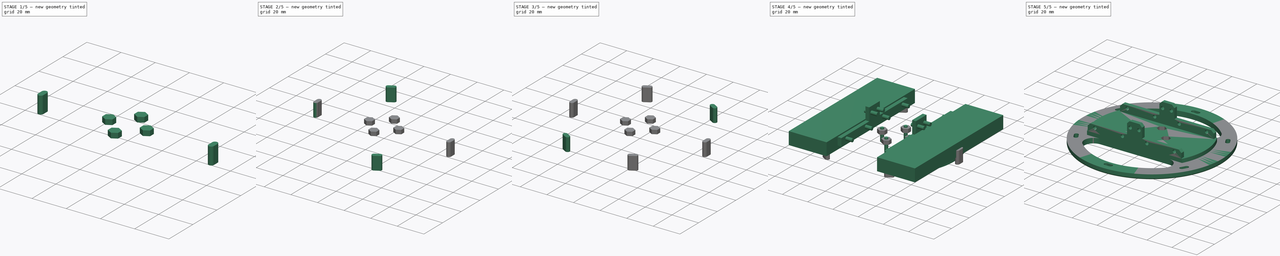
[diagram: build sequence overview — one tinted view per stage of 5, left to right]
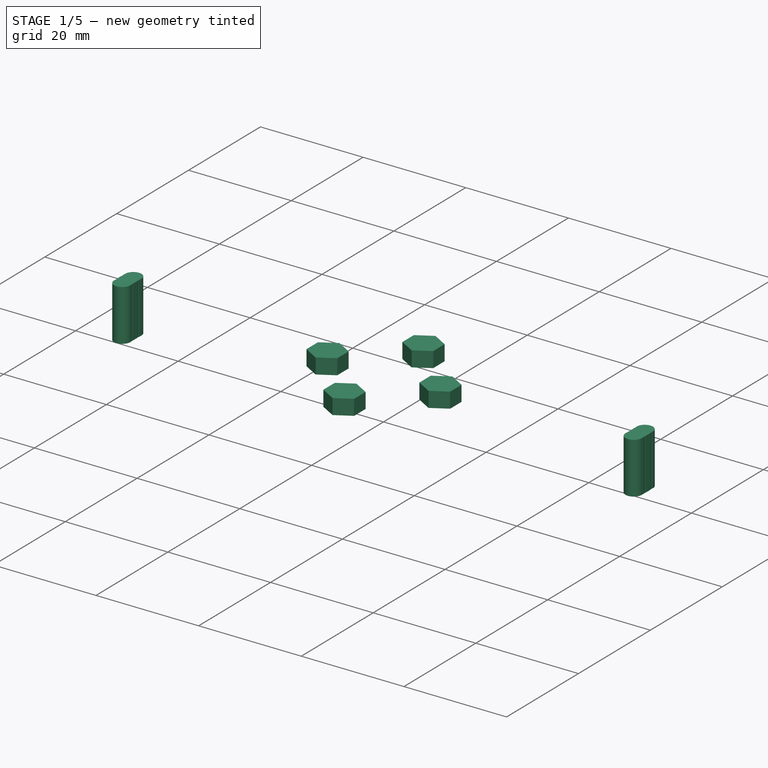
[diagram: stage 1 of 5 — iso view after this stage's code; geometry added in this stage tinted green]
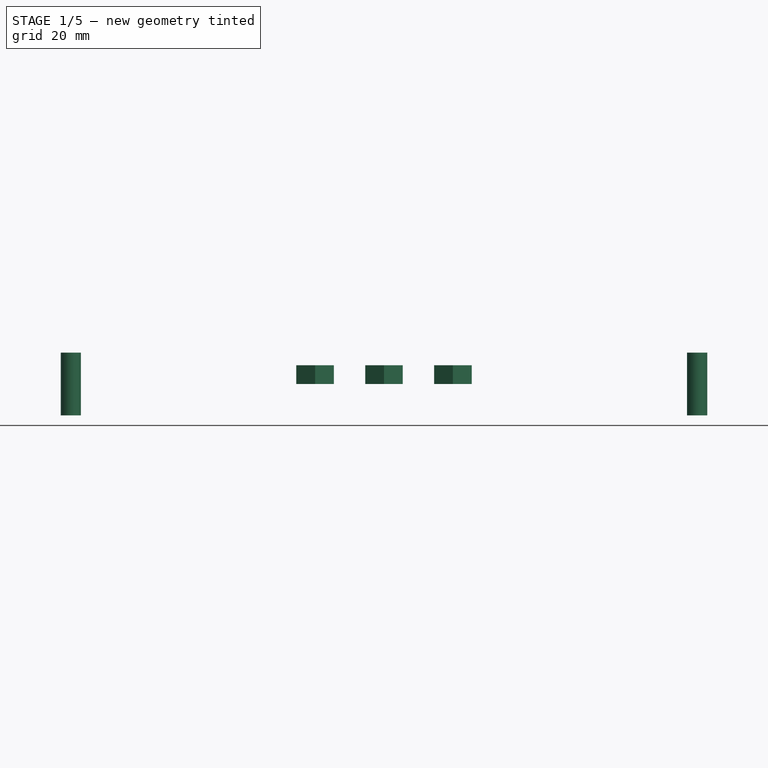
[diagram: stage 1 of 5 — front view after this stage's code; geometry added in this stage tinted green]
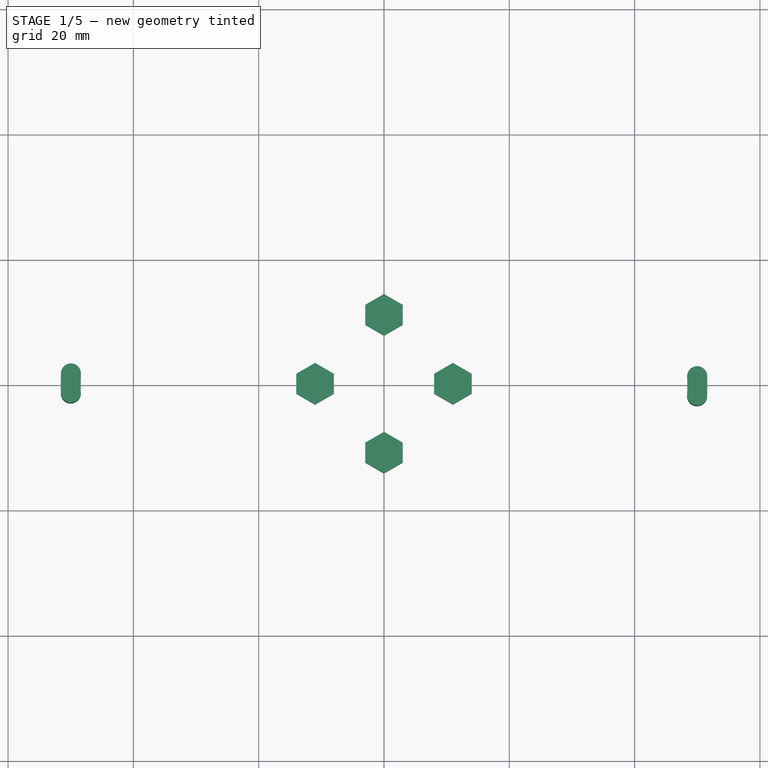
[diagram: stage 1 of 5 — top view after this stage's code; geometry added in this stage tinted green]
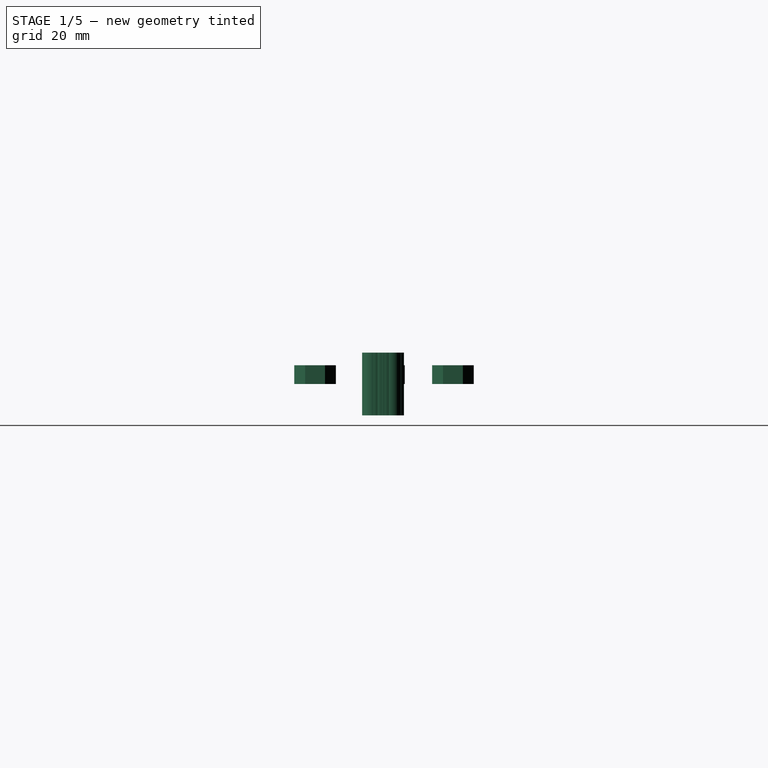
[diagram: stage 1 of 5 — right view after this stage's code; geometry added in this stage tinted green]
FCSTD DOCUMENT  (FreeCAD 0.15R4671 (Git))
Label: roll_plate
License: All rights reserved
LicenseURL: http://en.wikipedia.org/wiki/All_rights_reserved
objects: Part::Cylinder×71, Part::MultiFuse×52, Part::Box×9, Part::Cut×5, Part::Mirroring×5, Sketcher::SketchObject×4, Part::Extrusion×4, Part::Feature×2, Part::Fillet×1, Part::Chamfer×1
note: 154 computed .brp shape members not serialized (recipe doc carries the construction recipe); baked Part::Feature solids carry a one-line shape summary decoded from their .brp

FEATURE [Part::Cylinder] Cylinder065
  Angle = 360
  Height = 10
  Placement = pos=(50,0,-2) rot=(0,0,1;0rad)
  Radius = 1.6
FEATURE [Part::Cylinder] Cylinder066
  Angle = 360
  Height = 10
  Placement = pos=(-50,0,-2) rot=(0,0,1;0rad)
  Radius = 1.6
FEATURE [Part::Cylinder] Cylinder067
  Angle = 360
  Height = 10
  Placement = pos=(50,0,-2) rot=(0,0,1;0rad)
  Radius = 1.6
FEATURE [Part::Cylinder] Cylinder068
  Angle = 360
  Height = 10
  Placement = pos=(-50,0,-2) rot=(0,0,1;0rad)
  Radius = 1.6
FEATURE [Part::MultiFuse] Fusion043
  Placement = pos=(0,0,0) rot=(0,0,-1;0.034907rad)
  Shapes = -> [Cylinder067,Cylinder068]
FEATURE [Part::Cylinder] Cylinder069
  Angle = 360
  Height = 10
  Placement = pos=(50,0,-2) rot=(0,0,1;0rad)
  Radius = 1.6
FEATURE [Part::Cylinder] Cylinder070
  Angle = 360
  Height = 10
  Placement = pos=(-50,0,-2) rot=(0,0,1;0rad)
  Radius = 1.6
FEATURE [Part::MultiFuse] Fusion044
  Placement = pos=(0,0,0) rot=(0,0,-1;0.008727rad)
  Shapes = -> [Cylinder069,Cylinder070]
FEATURE [Part::Cylinder] Cylinder071
  Angle = 360
  Height = 10
  Placement = pos=(50,0,-2) rot=(0,0,1;0rad)
  Radius = 1.6
FEATURE [Part::Cylinder] Cylinder072
  Angle = 360
  Height = 10
  Placement = pos=(-50,0,-2) rot=(0,0,1;0rad)
  Radius = 1.6
FEATURE [Part::MultiFuse] Fusion045
  Placement = pos=(0,0,0) rot=(0,0,-1;0.02618rad)
  Shapes = -> [Cylinder071,Cylinder072]
FEATURE [Part::Cylinder] Cylinder073
  Angle = 360
  Height = 10
  Placement = pos=(50,0,-2) rot=(0,0,1;0rad)
  Radius = 1.6
FEATURE [Part::Cylinder] Cylinder074
  Angle = 360
  Height = 10
  Placement = pos=(-50,0,-2) rot=(0,0,1;0rad)
  Radius = 1.6
FEATURE [Part::MultiFuse] Fusion046
  Placement = pos=(0,0,0) rot=(0,0,1;0.02618rad)
  Shapes = -> [Cylinder073,Cylinder074]
FEATURE [Part::Cylinder] Cylinder075
  Angle = 360
  Height = 10
  Placement = pos=(50,0,-2) rot=(0,0,1;0rad)
  Radius = 1.6
FEATURE [Part::Cylinder] Cylinder076
  Angle = 360
  Height = 10
  Placement = pos=(-50,0,-2) rot=(0,0,1;0rad)
  Radius = 1.6
FEATURE [Part::MultiFuse] Fusion047
  Placement = pos=(0,0,0) rot=(0,0,1;0.008727rad)
  Shapes = -> [Cylinder075,Cylinder076]
FEATURE [Sketcher::SketchObject] Sketch  label="M004"
  sketch-geometry (4):
    g0: LineSegment StartX=0 StartY=3.4641 StartZ=0 EndX=3 EndY=1.73205 EndZ=0
    g1: LineSegment StartX=3 StartY=1.73205 StartZ=0 EndX=3 EndY=-1.44338 EndZ=0
    g2: LineSegment StartX=3 StartY=-1.44338 StartZ=0 EndX=0 EndY=-3.17543 EndZ=0
    g3: LineSegment StartX=0 StartY=3.4641 StartZ=0 EndX=0 EndY=-3.17543 EndZ=0
  constraints (12):
    c: DistanceX(g0) = 3
    c: Coincident(g1,g0)
    c: Vertical(g1)
    c: Coincident(g2,g1)
    c: DistanceX(g0) = 0
    c: DistanceX(g2) = 0
    c: Angle(g0,g1) = 2.0944
    c: Coincident(g3,g0)
    c: Coincident(g3,g2)
    c: DistanceY(g0) = 3.4641
    c: DistanceY(g2) = -3.17543
    c: Angle(g1,g2) = 2.0944
FEATURE [Part::Extrusion] Extrude
  Base = -> Sketch
  Dir = (0,0,3)
  Solid = true
FEATURE [Part::Mirroring] Part__Mirroring001  label="Extrude (Mirror #1)001"
  Base = (0,0,0)
  Normal = (1,0,0)
  Source = -> Extrude
FEATURE [Part::MultiFuse] Fusion050
  Placement = pos=(0,11,3) rot=(0,0,1;0rad)
  Shapes = -> [Part__Mirroring001,Extrude]
FEATURE [Sketcher::SketchObject] Sketch001  label="M005"
  sketch-geometry (4):
    g0: LineSegment StartX=0 StartY=3.4641 StartZ=0 EndX=3 EndY=1.73205 EndZ=0
    g1: LineSegment StartX=3 StartY=1.73205 StartZ=0 EndX=3 EndY=-1.44338 EndZ=0
    g2: LineSegment StartX=3 StartY=-1.44338 StartZ=0 EndX=0 EndY=-3.17543 EndZ=0
    g3: LineSegment StartX=0 StartY=3.4641 StartZ=0 EndX=0 EndY=-3.17543 EndZ=0
  constraints (12):
    c: DistanceX(g0) = 3
    c: Coincident(g1,g0)
    c: Vertical(g1)
    c: Coincident(g2,g1)
    c: DistanceX(g0) = 0
    c: DistanceX(g2) = 0
    c: Angle(g0,g1) = 2.0944
    c: Coincident(g3,g0)
    c: Coincident(g3,g2)
    c: DistanceY(g0) = 3.4641
    c: DistanceY(g2) = -3.17543
    c: Angle(g1,g2) = 2.0944
FEATURE [Part::Extrusion] Extrude001
  Base = -> Sketch001
  Dir = (0,0,3)
  Solid = true
FEATURE [Part::Mirroring] Part__Mirroring002  label="Extrude (Mirror #1)002"
  Base = (0,0,0)
  Normal = (1,0,0)
  Source = -> Extrude001
FEATURE [Part::MultiFuse] Fusion051
  Placement = pos=(0,-11,3) rot=(0,0,1;0rad)
  Shapes = -> [Part__Mirroring002,Extrude001]
FEATURE [Sketcher::SketchObject] Sketch002  label="M006"
  sketch-geometry (4):
    g0: LineSegment StartX=0 StartY=3.4641 StartZ=0 EndX=3 EndY=1.73205 EndZ=0
    g1: LineSegment StartX=3 StartY=1.73205 StartZ=0 EndX=3 EndY=-1.44338 EndZ=0
    g2: LineSegment StartX=3 StartY=-1.44338 StartZ=0 EndX=0 EndY=-3.17543 EndZ=0
    g3: LineSegment StartX=0 StartY=3.4641 StartZ=0 EndX=0 EndY=-3.17543 EndZ=0
  constraints (12):
    c: DistanceX(g0) = 3
    c: Coincident(g1,g0)
    c: Vertical(g1)
    c: Coincident(g2,g1)
    c: DistanceX(g0) = 0
    c: DistanceX(g2) = 0
    c: Angle(g0,g1) = 2.0944
    c: Coincident(g3,g0)
    c: Coincident(g3,g2)
    c: DistanceY(g0) = 3.4641
    c: DistanceY(g2) = -3.17543
    c: Angle(g1,g2) = 2.0944
FEATURE [Part::Extrusion] Extrude002
  Base = -> Sketch002
  Dir = (0,0,3)
  Solid = true
FEATURE [Part::Mirroring] Part__Mirroring003  label="Extrude (Mirror #1)003"
  Base = (0,0,0)
  Normal = (1,0,0)
  Source = -> Extrude002
FEATURE [Part::MultiFuse] Fusion052
  Placement = pos=(11,0,3) rot=(0,0,1;0rad)
  Shapes = -> [Part__Mirroring003,Extrude002]
FEATURE [Sketcher::SketchObject] Sketch003  label="M007"
  sketch-geometry (4):
    g0: LineSegment StartX=0 StartY=3.4641 StartZ=0 EndX=3 EndY=1.73205 EndZ=0
    g1: LineSegment StartX=3 StartY=1.73205 StartZ=0 EndX=3 EndY=-1.44338 EndZ=0
    g2: LineSegment StartX=3 StartY=-1.44338 StartZ=0 EndX=0 EndY=-3.17543 EndZ=0
    g3: LineSegment StartX=0 StartY=3.4641 StartZ=0 EndX=0 EndY=-3.17543 EndZ=0
  constraints (12):
    c: DistanceX(g0) = 3
    c: Coincident(g1,g0)
    c: Vertical(g1)
    c: Coincident(g2,g1)
    c: DistanceX(g0) = 0
    c: DistanceX(g2) = 0
    c: Angle(g0,g1) = 2.0944
    c: Coincident(g3,g0)
    c: Coincident(g3,g2)
    c: DistanceY(g0) = 3.4641
    c: DistanceY(g2) = -3.17543
    c: Angle(g1,g2) = 2.0944
FEATURE [Part::Extrusion] Extrude003
  Base = -> Sketch003
  Dir = (0,0,3)
  Solid = true
FEATURE [Part::Mirroring] Part__Mirroring004  label="Extrude (Mirror #1)004"
  Base = (0,0,0)
  Normal = (1,0,0)
  Source = -> Extrude003
FEATURE [Part::MultiFuse] Fusion053
  Placement = pos=(-11,0,3) rot=(0,0,1;0rad)
  Shapes = -> [Part__Mirroring004,Extrude003]
FEATURE [Part::MultiFuse] Fusion054
  Shapes = -> [Fusion053,Fusion051,Fusion052,Fusion050]
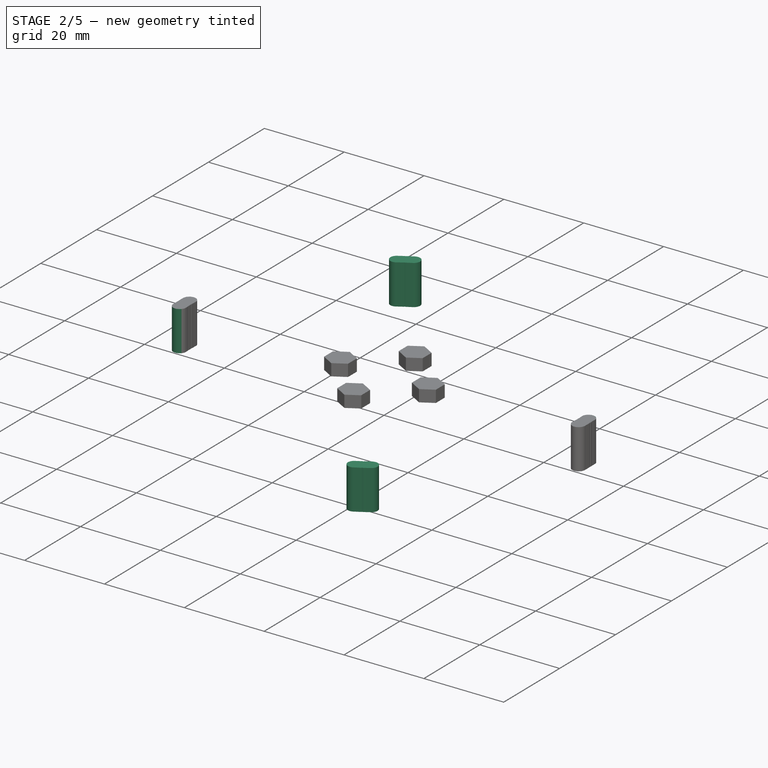
[diagram: stage 2 of 5 — iso view after this stage's code; geometry added in this stage tinted green]
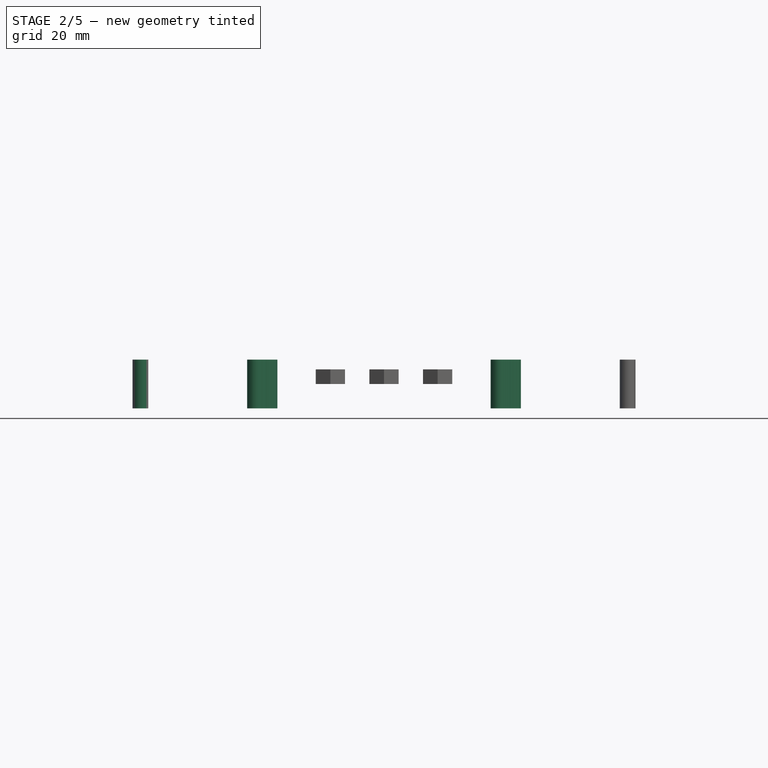
[diagram: stage 2 of 5 — front view after this stage's code; geometry added in this stage tinted green]
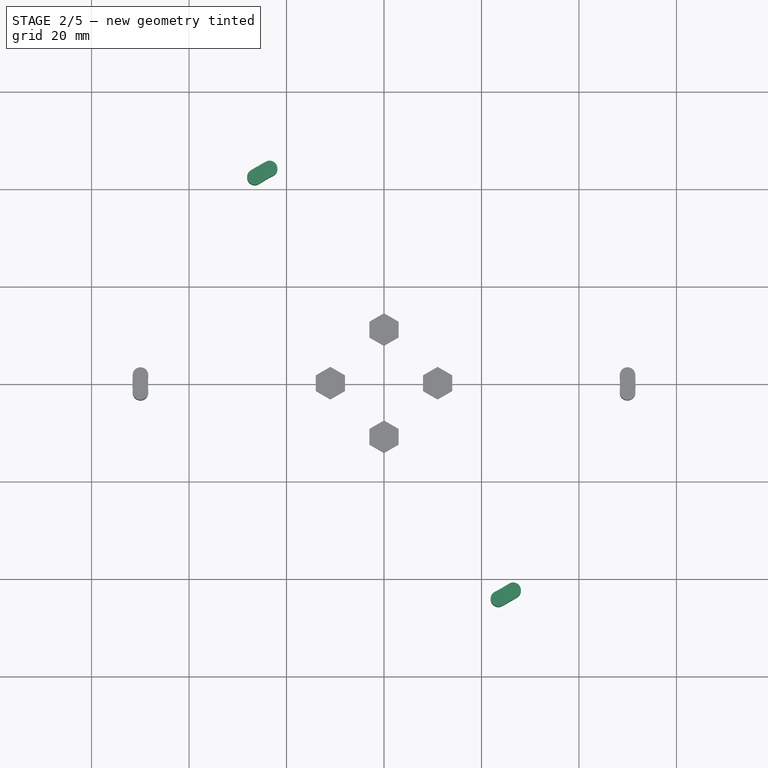
[diagram: stage 2 of 5 — top view after this stage's code; geometry added in this stage tinted green]
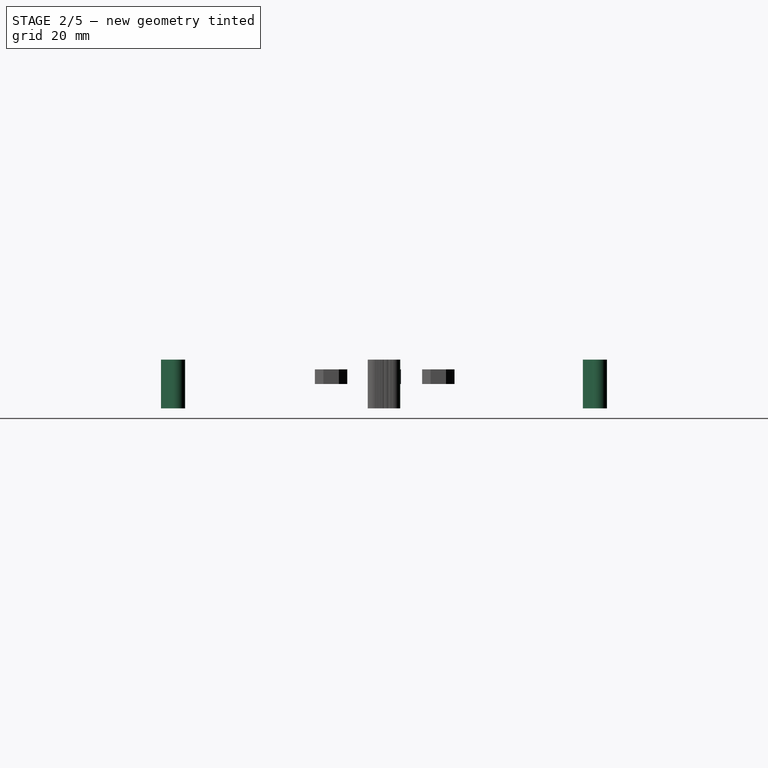
[diagram: stage 2 of 5 — right view after this stage's code; geometry added in this stage tinted green]
FEATURE [Part::Cylinder] Cylinder047
  Angle = 360
  Height = 10
  Placement = pos=(50,0,-2) rot=(0,0,1;0rad)
  Radius = 1.6
FEATURE [Part::Cylinder] Cylinder048
  Angle = 360
  Height = 10
  Placement = pos=(-50,0,-2) rot=(0,0,1;0rad)
  Radius = 1.6
FEATURE [Part::MultiFuse] Fusion032
  Placement = pos=(0,0,0) rot=(0,0,1;0.034907rad)
  Shapes = -> [Cylinder047,Cylinder048]
FEATURE [Part::Cylinder] Cylinder049
  Angle = 360
  Height = 10
  Placement = pos=(50,0,-2) rot=(0,0,1;0rad)
  Radius = 1.6
FEATURE [Part::Cylinder] Cylinder050
  Angle = 360
  Height = 10
  Placement = pos=(-50,0,-2) rot=(0,0,1;0rad)
  Radius = 1.6
FEATURE [Part::MultiFuse] Fusion033
  Placement = pos=(0,0,0) rot=(0,0,-1;0.017453rad)
  Shapes = -> [Cylinder049,Cylinder050]
FEATURE [Part::Cylinder] Cylinder051
  Angle = 360
  Height = 10
  Placement = pos=(50,0,-2) rot=(0,0,1;0rad)
  Radius = 1.6
FEATURE [Part::Cylinder] Cylinder052
  Angle = 360
  Height = 10
  Placement = pos=(-50,0,-2) rot=(0,0,1;0rad)
  Radius = 1.6
FEATURE [Part::MultiFuse] Fusion034
  Placement = pos=(0,0,0) rot=(0,0,-1;0.034907rad)
  Shapes = -> [Cylinder051,Cylinder052]
FEATURE [Part::Cylinder] Cylinder053
  Angle = 360
  Height = 10
  Placement = pos=(50,0,-2) rot=(0,0,1;0rad)
  Radius = 1.6
FEATURE [Part::Cylinder] Cylinder054
  Angle = 360
  Height = 10
  Placement = pos=(-50,0,-2) rot=(0,0,1;0rad)
  Radius = 1.6
FEATURE [Part::MultiFuse] Fusion035
  Placement = pos=(0,0,0) rot=(0,0,-1;0.008727rad)
  Shapes = -> [Cylinder053,Cylinder054]
FEATURE [Part::Cylinder] Cylinder055
  Angle = 360
  Height = 10
  Placement = pos=(50,0,-2) rot=(0,0,1;0rad)
  Radius = 1.6
FEATURE [Part::Cylinder] Cylinder056
  Angle = 360
  Height = 10
  Placement = pos=(-50,0,-2) rot=(0,0,1;0rad)
  Radius = 1.6
FEATURE [Part::MultiFuse] Fusion036
  Placement = pos=(0,0,0) rot=(0,0,-1;0.02618rad)
  Shapes = -> [Cylinder055,Cylinder056]
FEATURE [Part::Cylinder] Cylinder057
  Angle = 360
  Height = 10
  Placement = pos=(50,0,-2) rot=(0,0,1;0rad)
  Radius = 1.6
FEATURE [Part::Cylinder] Cylinder058
  Angle = 360
  Height = 10
  Placement = pos=(-50,0,-2) rot=(0,0,1;0rad)
  Radius = 1.6
FEATURE [Part::MultiFuse] Fusion037
  Placement = pos=(0,0,0) rot=(0,0,1;0.02618rad)
  Shapes = -> [Cylinder057,Cylinder058]
FEATURE [Part::Cylinder] Cylinder059
  Angle = 360
  Height = 10
  Placement = pos=(50,0,-2) rot=(0,0,1;0rad)
  Radius = 1.6
FEATURE [Part::Cylinder] Cylinder060
  Angle = 360
  Height = 10
  Placement = pos=(-50,0,-2) rot=(0,0,1;0rad)
  Radius = 1.6
FEATURE [Part::MultiFuse] Fusion038
  Placement = pos=(0,0,0) rot=(0,0,1;0.008727rad)
  Shapes = -> [Cylinder059,Cylinder060]
FEATURE [Part::Cylinder] Cylinder061
  Angle = 360
  Height = 10
  Placement = pos=(50,0,-2) rot=(0,0,1;0rad)
  Radius = 1.6
FEATURE [Part::Cylinder] Cylinder062
  Angle = 360
  Height = 10
  Placement = pos=(-50,0,-2) rot=(0,0,1;0rad)
  Radius = 1.6
FEATURE [Part::MultiFuse] Fusion040
  Placement = pos=(0,0,0) rot=(0,0,1;0.017453rad)
  Shapes = -> [Cylinder061,Cylinder062]
FEATURE [Part::Cylinder] Cylinder063
  Angle = 360
  Height = 10
  Placement = pos=(50,0,-2) rot=(0,0,1;0rad)
  Radius = 1.6
FEATURE [Part::Cylinder] Cylinder064
  Angle = 360
  Height = 10
  Placement = pos=(-50,0,-2) rot=(0,0,1;0rad)
  Radius = 1.6
FEATURE [Part::MultiFuse] Fusion041
  Placement = pos=(0,0,0) rot=(0,0,1;0.034907rad)
  Shapes = -> [Cylinder063,Cylinder064]
FEATURE [Part::MultiFuse] Fusion042
  Placement = pos=(0,0,0) rot=(0,0,-1;0.017453rad)
  Shapes = -> [Cylinder065,Cylinder066]
FEATURE [Part::MultiFuse] Fusion048
  Placement = pos=(0,0,0) rot=(0,0,1;2.0944rad)
  Shapes = -> [Fusion043,Fusion046,Fusion041,Fusion045,Fusion042,Fusion044,Fusion040,Fusion047]
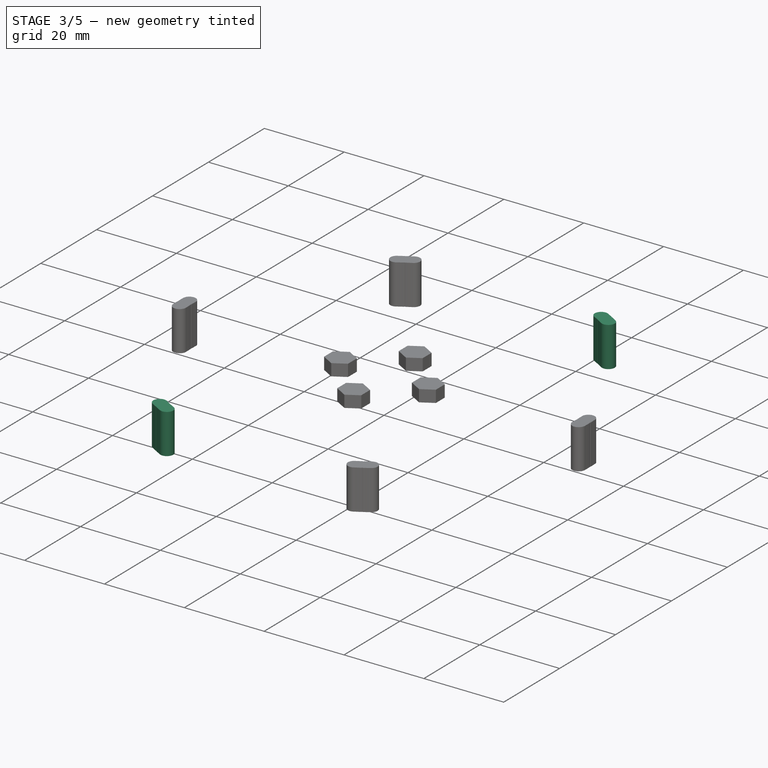
[diagram: stage 3 of 5 — iso view after this stage's code; geometry added in this stage tinted green]
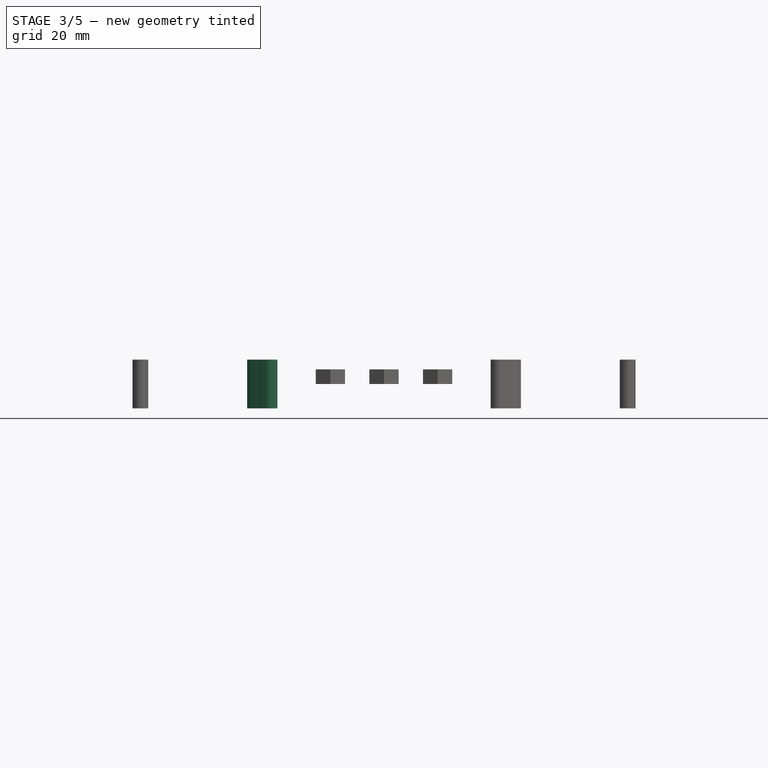
[diagram: stage 3 of 5 — front view after this stage's code; geometry added in this stage tinted green]
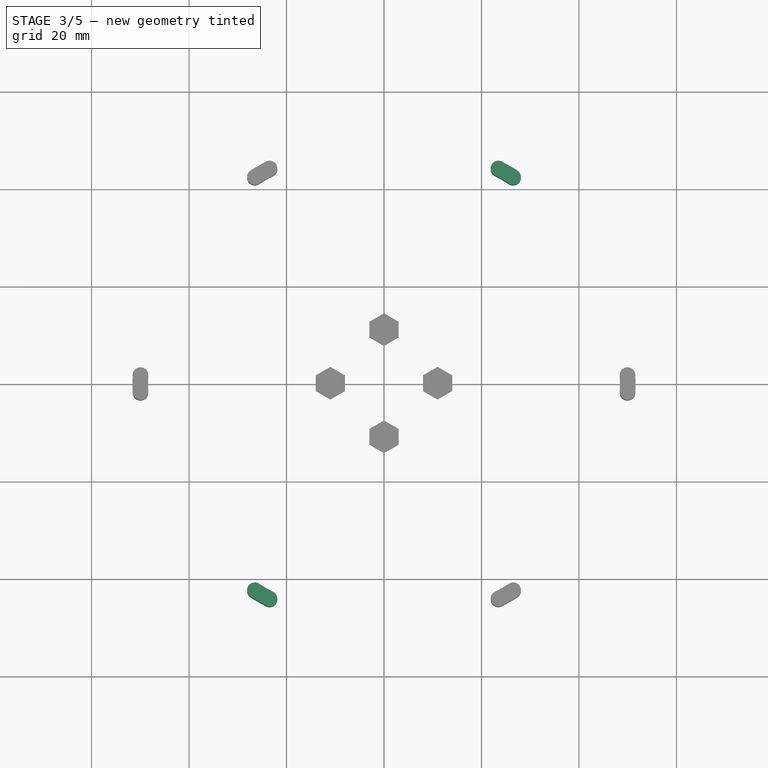
[diagram: stage 3 of 5 — top view after this stage's code; geometry added in this stage tinted green]
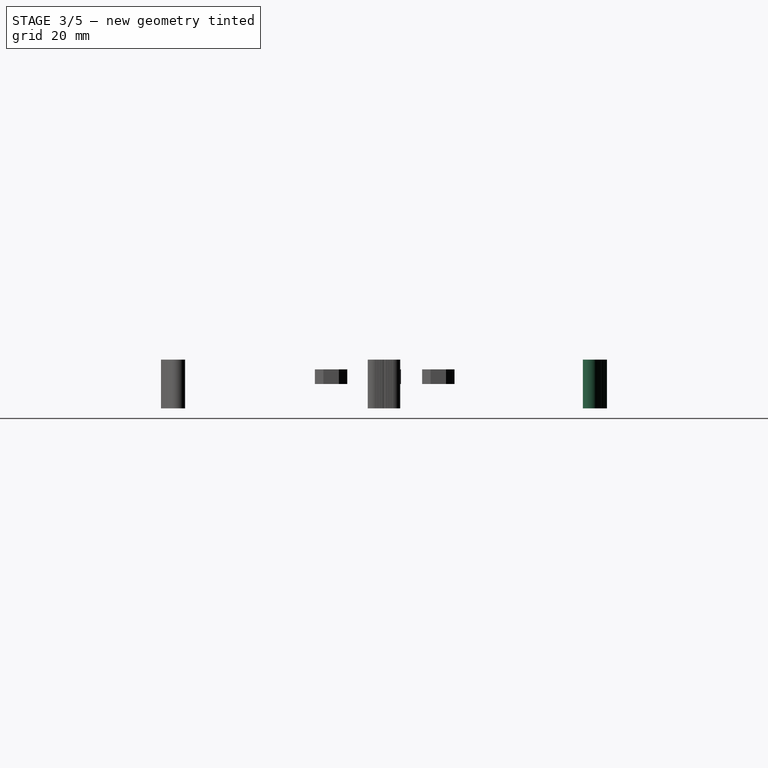
[diagram: stage 3 of 5 — right view after this stage's code; geometry added in this stage tinted green]
FEATURE [Part::Cylinder] Cylinder027
  Angle = 360
  Height = 10
  Placement = pos=(50,0,-2) rot=(0,0,1;0rad)
  Radius = 1.6
FEATURE [Part::Cylinder] Cylinder028
  Angle = 360
  Height = 10
  Placement = pos=(-50,0,-2) rot=(0,0,1;0rad)
  Radius = 1.6
FEATURE [Part::MultiFuse] Fusion021
  Placement = pos=(0,0,0) rot=(0,0,1;0.017453rad)
  Shapes = -> [Cylinder027,Cylinder028]
FEATURE [Part::Cylinder] Cylinder029
  Angle = 360
  Height = 10
  Placement = pos=(50,0,-2) rot=(0,0,1;0rad)
  Radius = 1.6
FEATURE [Part::Cylinder] Cylinder030
  Angle = 360
  Height = 10
  Placement = pos=(-50,0,-2) rot=(0,0,1;0rad)
  Radius = 1.6
FEATURE [Part::MultiFuse] Fusion022
  Placement = pos=(0,0,0) rot=(0,0,1;0.034907rad)
  Shapes = -> [Cylinder029,Cylinder030]
FEATURE [Part::Cylinder] Cylinder033
  Angle = 360
  Height = 10
  Placement = pos=(50,0,-2) rot=(0,0,1;0rad)
  Radius = 1.6
FEATURE [Part::Cylinder] Cylinder034
  Angle = 360
  Height = 10
  Placement = pos=(-50,0,-2) rot=(0,0,1;0rad)
  Radius = 1.6
FEATURE [Part::MultiFuse] Fusion024
  Placement = pos=(0,0,0) rot=(0,0,-1;0.017453rad)
  Shapes = -> [Cylinder033,Cylinder034]
FEATURE [Part::Cylinder] Cylinder035
  Angle = 360
  Height = 10
  Placement = pos=(50,0,-2) rot=(0,0,1;0rad)
  Radius = 1.6
FEATURE [Part::Cylinder] Cylinder036
  Angle = 360
  Height = 10
  Placement = pos=(-50,0,-2) rot=(0,0,1;0rad)
  Radius = 1.6
FEATURE [Part::MultiFuse] Fusion025
  Placement = pos=(0,0,0) rot=(0,0,-1;0.034907rad)
  Shapes = -> [Cylinder035,Cylinder036]
FEATURE [Part::Cylinder] Cylinder037
  Angle = 360
  Height = 10
  Placement = pos=(50,0,-2) rot=(0,0,1;0rad)
  Radius = 1.6
FEATURE [Part::Cylinder] Cylinder038
  Angle = 360
  Height = 10
  Placement = pos=(-50,0,-2) rot=(0,0,1;0rad)
  Radius = 1.6
FEATURE [Part::MultiFuse] Fusion026
  Placement = pos=(0,0,0) rot=(0,0,-1;0.008727rad)
  Shapes = -> [Cylinder037,Cylinder038]
FEATURE [Part::Cylinder] Cylinder039
  Angle = 360
  Height = 10
  Placement = pos=(50,0,-2) rot=(0,0,1;0rad)
  Radius = 1.6
FEATURE [Part::Cylinder] Cylinder040
  Angle = 360
  Height = 10
  Placement = pos=(-50,0,-2) rot=(0,0,1;0rad)
  Radius = 1.6
FEATURE [Part::MultiFuse] Fusion027
  Placement = pos=(0,0,0) rot=(0,0,-1;0.02618rad)
  Shapes = -> [Cylinder039,Cylinder040]
FEATURE [Part::Cylinder] Cylinder041
  Angle = 360
  Height = 10
  Placement = pos=(50,0,-2) rot=(0,0,1;0rad)
  Radius = 1.6
FEATURE [Part::Cylinder] Cylinder042
  Angle = 360
  Height = 10
  Placement = pos=(-50,0,-2) rot=(0,0,1;0rad)
  Radius = 1.6
FEATURE [Part::MultiFuse] Fusion028
  Placement = pos=(0,0,0) rot=(0,0,1;0.02618rad)
  Shapes = -> [Cylinder041,Cylinder042]
FEATURE [Part::Cylinder] Cylinder043
  Angle = 360
  Height = 10
  Placement = pos=(50,0,-2) rot=(0,0,1;0rad)
  Radius = 1.6
FEATURE [Part::Cylinder] Cylinder044
  Angle = 360
  Height = 10
  Placement = pos=(-50,0,-2) rot=(0,0,1;0rad)
  Radius = 1.6
FEATURE [Part::MultiFuse] Fusion029
  Placement = pos=(0,0,0) rot=(0,0,1;0.008727rad)
  Shapes = -> [Cylinder043,Cylinder044]
FEATURE [Part::MultiFuse] Fusion030
  Shapes = -> [Fusion025,Fusion028,Fusion022,Fusion027,Fusion024,Fusion026,Fusion021,Fusion029]
FEATURE [Part::Cylinder] Cylinder045
  Angle = 360
  Height = 10
  Placement = pos=(50,0,-2) rot=(0,0,1;0rad)
  Radius = 1.6
FEATURE [Part::Cylinder] Cylinder046
  Angle = 360
  Height = 10
  Placement = pos=(-50,0,-2) rot=(0,0,1;0rad)
  Radius = 1.6
FEATURE [Part::MultiFuse] Fusion031
  Placement = pos=(0,0,0) rot=(0,0,1;0.017453rad)
  Shapes = -> [Cylinder045,Cylinder046]
FEATURE [Part::MultiFuse] Fusion039
  Placement = pos=(0,0,0) rot=(0,0,1;1.0472rad)
  Shapes = -> [Fusion034,Fusion037,Fusion032,Fusion036,Fusion033,Fusion035,Fusion031,Fusion038]
FEATURE [Part::MultiFuse] Fusion049
  Shapes = -> [Fusion048,Fusion039,Fusion030]
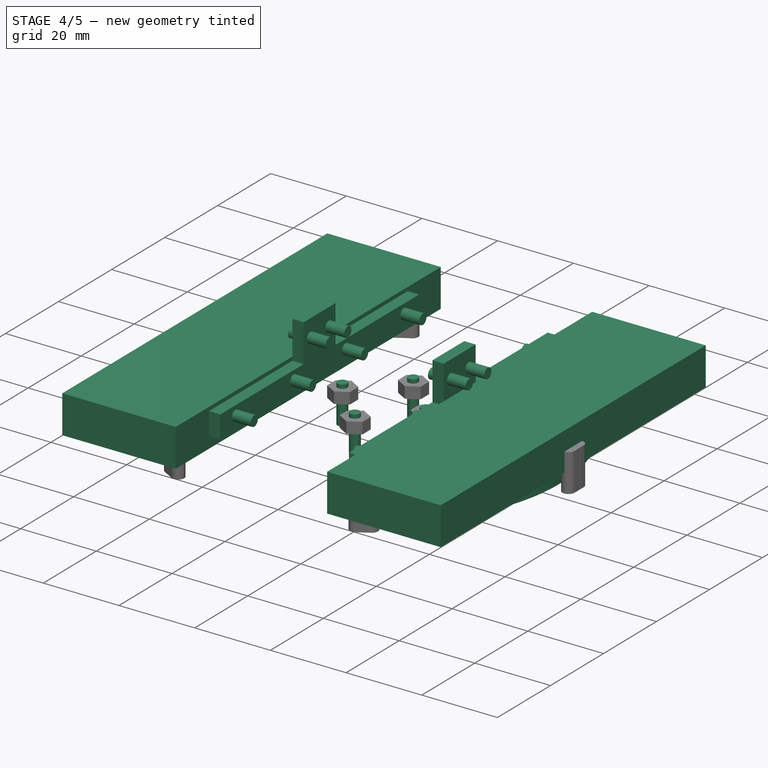
[diagram: stage 4 of 5 — iso view after this stage's code; geometry added in this stage tinted green]
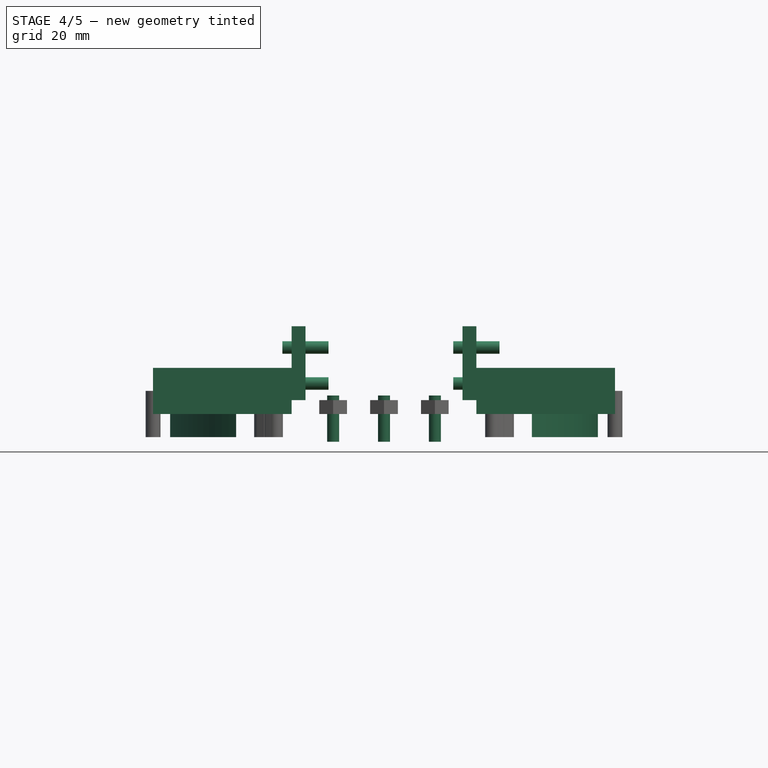
[diagram: stage 4 of 5 — front view after this stage's code; geometry added in this stage tinted green]
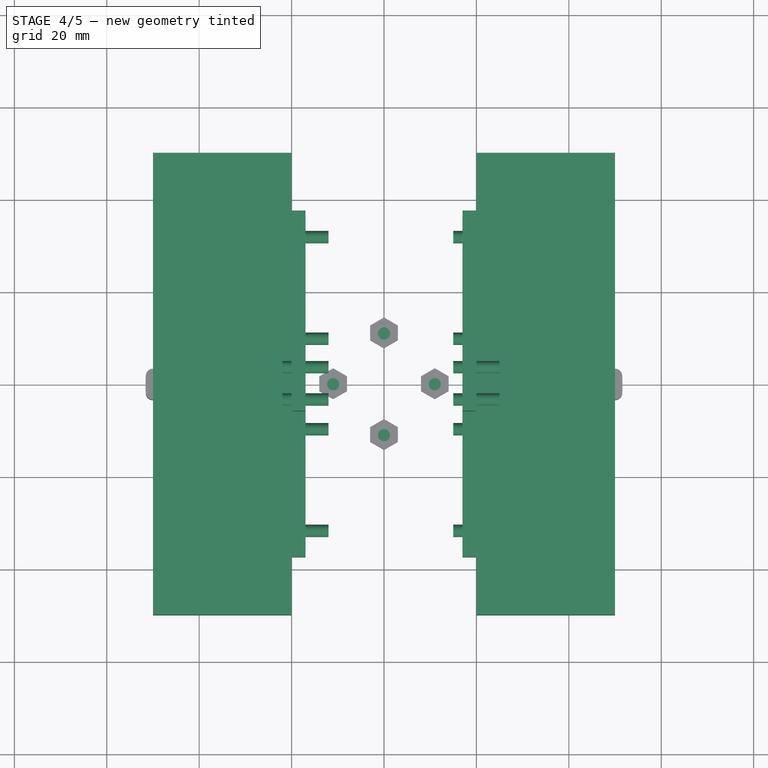
[diagram: stage 4 of 5 — top view after this stage's code; geometry added in this stage tinted green]
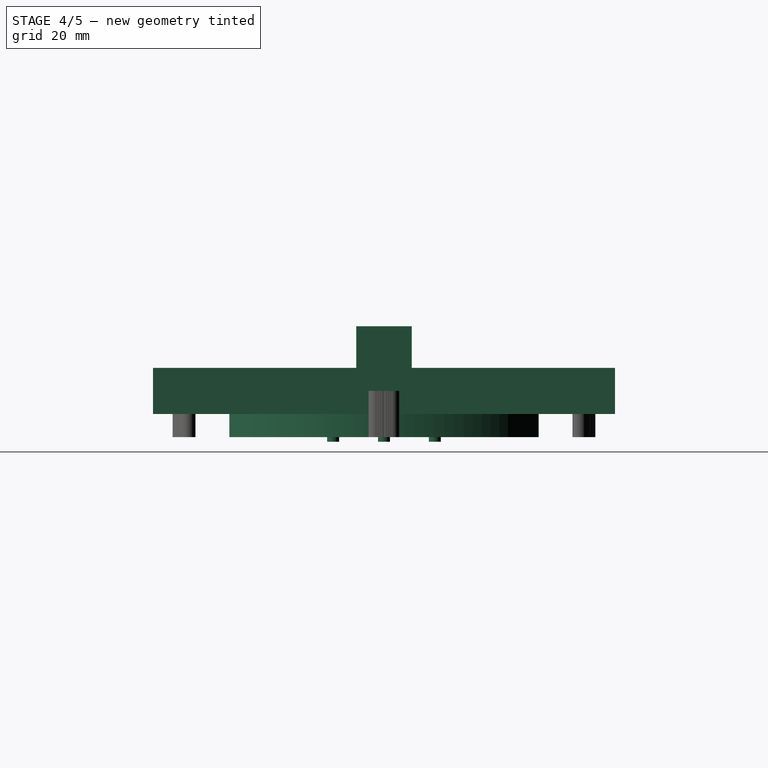
[diagram: stage 4 of 5 — right view after this stage's code; geometry added in this stage tinted green]
FEATURE [Part::Box] Box002  label="Cube002"
  Height = 6
  Length = 3
  Placement = pos=(17,-37.5,6) rot=(0,0,1;0rad)
  Width = 75
FEATURE [Part::Box] Box003  label="Cube003"
  Height = 6
  Length = 3
  Placement = pos=(-20,-37.5,6) rot=(0,0,1;0rad)
  Width = 75
FEATURE [Part::Box] Box004  label="Cube004"
  Height = 10
  Length = 30
  Placement = pos=(20,-50,3.001) rot=(0,0,1;0rad)
  Width = 100
FEATURE [Part::Box] Box005  label="Cube005"
  Height = 10
  Length = 30
  Placement = pos=(-50,-50,3.001) rot=(0,0,1;0rad)
  Width = 100
FEATURE [Part::MultiFuse] Fusion010
  Shapes = -> [Box004,Box005]
FEATURE [Part::Box] Box006  label="Cube006"
  Height = 10
  Length = 3
  Placement = pos=(17,-6,12) rot=(0,0,1;0rad)
  Width = 12
FEATURE [Part::Box] Box007  label="Cube007"
  Height = 10
  Length = 3
  Placement = pos=(-20,-6,12) rot=(0,0,1;0rad)
  Width = 12
FEATURE [Part::Cylinder] Cylinder016
  Angle = 360
  Height = 10
  Placement = pos=(15,0,0) rot=(0,1,0;1.5708rad)
  Radius = 1.35
FEATURE [Part::MultiFuse] Fusion012
  Shapes = -> [Box002,Box003,Box006,Box007]
FEATURE [Part::Cylinder] Cylinder017
  Angle = 360
  Height = 10
  Placement = pos=(15,22,0) rot=(0,1,0;1.5708rad)
  Radius = 1.35
FEATURE [Part::Cylinder] Cylinder018
  Angle = 360
  Height = 10
  Placement = pos=(15,-6.3,7.8) rot=(0,1,0;1.5708rad)
  Radius = 1.35
FEATURE [Part::MultiFuse] Fusion014
  Placement = pos=(0,9.8,9.6) rot=(0,0,1;0rad)
  Shapes = -> [Cylinder018,Cylinder016,Cylinder017]
FEATURE [Part::Cylinder] Cylinder019
  Angle = 360
  Height = 10
  Placement = pos=(15,0,0) rot=(0,1,0;1.5708rad)
  Radius = 1.35
FEATURE [Part::Cylinder] Cylinder020
  Angle = 360
  Height = 10
  Placement = pos=(15,22,0) rot=(0,1,0;1.5708rad)
  Radius = 1.35
FEATURE [Part::Cylinder] Cylinder021
  Angle = 360
  Height = 10
  Placement = pos=(15,-6.3,7.8) rot=(0,1,0;1.5708rad)
  Radius = 1.35
FEATURE [Part::MultiFuse] Fusion015
  Placement = pos=(-37,9.8,9.6) rot=(0,0,1;0rad)
  Shapes = -> [Cylinder021,Cylinder019,Cylinder020]
FEATURE [Part::MultiFuse] Fusion016
  Shapes = -> [Fusion014,Fusion015]
FEATURE [Part::Mirroring] Part__Mirroring  label="Fusion016 (Mirror #1)"
  Base = (0,0,0)
  Normal = (0,1,0)
  Source = -> Fusion016
FEATURE [Part::MultiFuse] Fusion017
  Shapes = -> [Part__Mirroring,Fusion016]
FEATURE [Part::Feature] Part__Feature  label="DC08_M01_DUMMY"
  Placement = pos=(20.8,0,57.4) rot=(1,0,0;1.5708rad)
  shape: bbox 40.2 x 55.3 x 66.38 mm, 327 faces (baked)
FEATURE [Part::Cylinder] Cylinder022
  Angle = 360
  Height = 10
  Placement = pos=(11,22,-3) rot=(0,0,1;0rad)
  Radius = 1.3
FEATURE [Part::Cylinder] Cylinder023
  Angle = 360
  Height = 10
  Placement = pos=(11,0,-3) rot=(0,0,1;0rad)
  Radius = 1.3
FEATURE [Part::Cylinder] Cylinder024
  Angle = 360
  Height = 10
  Placement = pos=(22,11,-3) rot=(0,0,1;0rad)
  Radius = 1.3
FEATURE [Part::Cylinder] Cylinder025
  Angle = 360
  Height = 10
  Placement = pos=(0,11,-3) rot=(0,0,1;0rad)
  Radius = 1.3
FEATURE [Part::MultiFuse] Fusion018
  Placement = pos=(-11,-11,0) rot=(0,0,1;0rad)
  Shapes = -> [Cylinder025,Cylinder024,Cylinder023,Cylinder022]
FEATURE [Part::MultiFuse] Fusion019
  Shapes = -> [Fusion017,Fusion018]
FEATURE [Part::Feature] Part__Feature002  label="DC08_M01_DUMMY002"
  Placement = pos=(-20.8,0,57.4) rot=(1,0,0;1.5708rad)
  shape: bbox 40.2 x 55.3 x 66.38 mm, 327 faces (baked)
FEATURE [Part::Cylinder] Cylinder026
  Angle = 360
  Height = 10
  Placement = pos=(0,0,-2) rot=(0,0,1;0rad)
  Radius = 46.3
FEATURE [Part::Box] Box008  label="Cube008"
  Height = 20
  Length = 64
  Placement = pos=(-32,-50,-6) rot=(0,0,1;0rad)
  Width = 100
FEATURE [Part::Cut] Cut001
  Base = -> Cylinder026
  Tool = -> Box008
FEATURE [Part::MultiFuse] Fusion020
  Shapes = -> [Fusion019,Cut001]
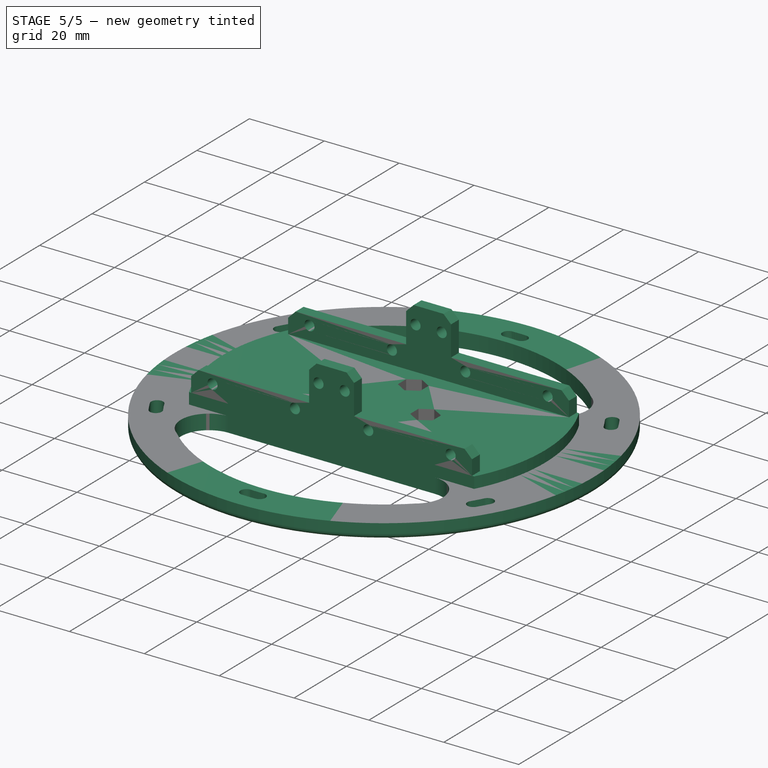
[diagram: stage 5 of 5 — iso view after this stage's code; geometry added in this stage tinted green]
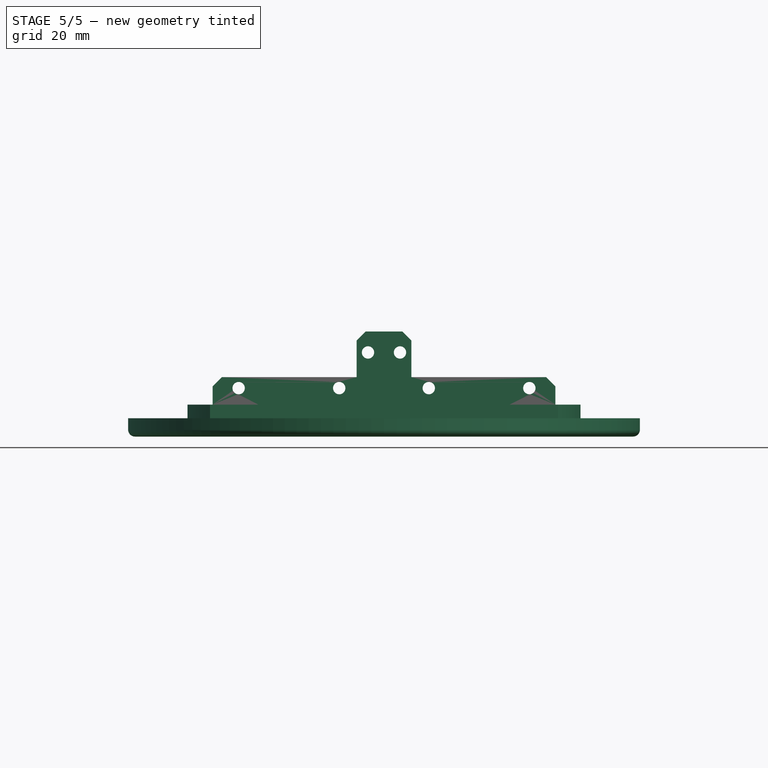
[diagram: stage 5 of 5 — front view after this stage's code; geometry added in this stage tinted green]
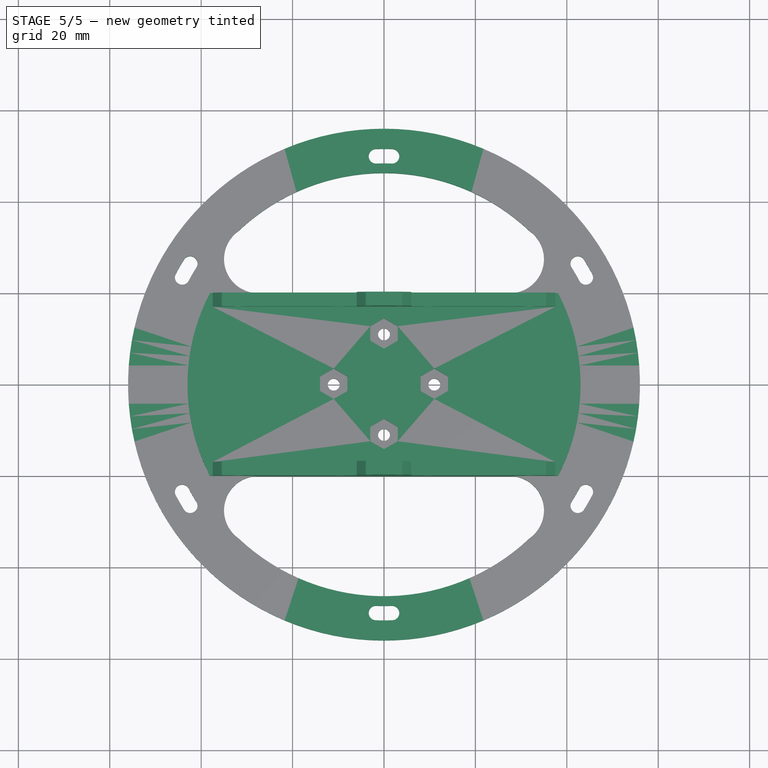
[diagram: stage 5 of 5 — top view after this stage's code; geometry added in this stage tinted green]
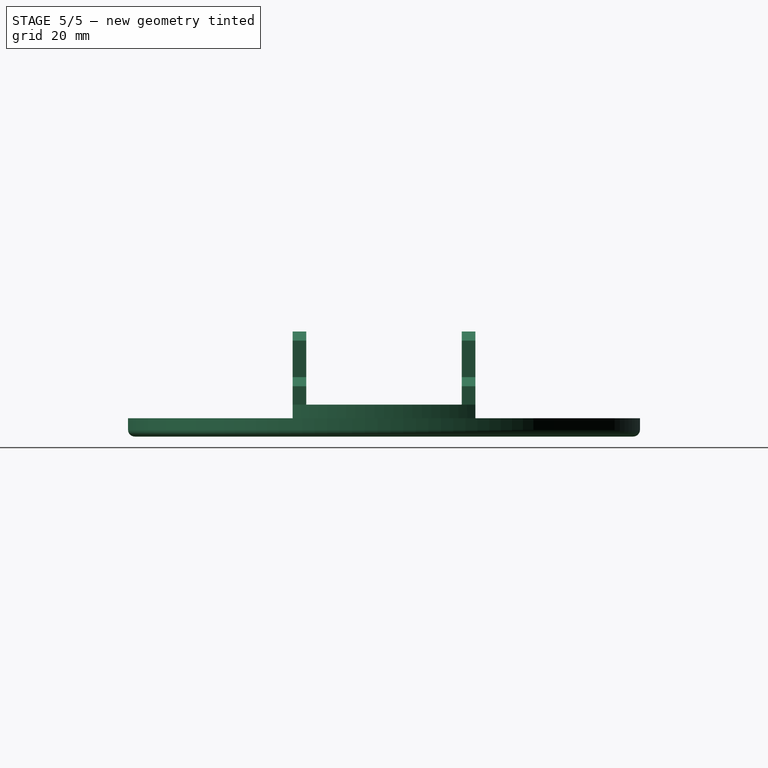
[diagram: stage 5 of 5 — right view after this stage's code; geometry added in this stage tinted green]
FEATURE [Part::Cylinder] Cylinder
  Angle = 360
  Height = 4
  Placement = pos=(0,0,-1) rot=(0,0,1;0rad)
  Radius = 56
FEATURE [Part::Cylinder] Cylinder001
  Angle = 360
  Height = 10
  Placement = pos=(50,0,-2) rot=(0,0,1;0rad)
  Radius = 1.6
FEATURE [Part::Cylinder] Cylinder002
  Angle = 360
  Height = 10
  Placement = pos=(-50,0,-2) rot=(0,0,1;0rad)
  Radius = 1.6
FEATURE [Part::MultiFuse] Fusion
  Shapes = -> [Cylinder001,Cylinder002]
FEATURE [Part::Cylinder] Cylinder005
  Angle = 360
  Height = 10
  Placement = pos=(50,0,-2) rot=(0,0,1;0rad)
  Radius = 1.6
FEATURE [Part::Cylinder] Cylinder006
  Angle = 360
  Height = 10
  Placement = pos=(-50,0,-2) rot=(0,0,1;0rad)
  Radius = 1.6
FEATURE [Part::MultiFuse] Fusion002
  Placement = pos=(0,0,0) rot=(0,0,1;1.0472rad)
  Shapes = -> [Cylinder005,Cylinder006]
FEATURE [Part::Cylinder] Cylinder009
  Angle = 360
  Height = 10
  Placement = pos=(50,0,-2) rot=(0,0,1;0rad)
  Radius = 1.6
FEATURE [Part::Cylinder] Cylinder010
  Angle = 360
  Height = 10
  Placement = pos=(-50,0,-2) rot=(0,0,1;0rad)
  Radius = 1.6
FEATURE [Part::MultiFuse] Fusion004
  Placement = pos=(0,0,0) rot=(0,0,1;2.0944rad)
  Shapes = -> [Cylinder009,Cylinder010]
FEATURE [Part::MultiFuse] Fusion005
  Shapes = -> [Fusion,Fusion004,Fusion002]
FEATURE [Part::Cylinder] Cylinder011
  Angle = 360
  Height = 10
  Placement = pos=(27.5,27.5,-2) rot=(0,0,1;0rad)
  Radius = 7.5
FEATURE [Part::Box] Box  label="Cube"
  Height = 10
  Length = 15
  Placement = pos=(20,-27.5,-2) rot=(0,0,1;0rad)
  Width = 55
FEATURE [Part::Cylinder] Cylinder012
  Angle = 360
  Height = 3
  Placement = pos=(0,0,3) rot=(0,0,1;0rad)
  Radius = 43
FEATURE [Part::Cylinder] Cylinder013
  Angle = 360
  Height = 10
  Placement = pos=(27.5,-27.5,-2) rot=(0,0,1;0rad)
  Radius = 7.5
FEATURE [Part::MultiFuse] Fusion006
  Shapes = -> [Box,Cylinder011,Cylinder013]
FEATURE [Part::Cylinder] Cylinder014
  Angle = 360
  Height = 10
  Placement = pos=(27.5,27.5,-2) rot=(0,0,1;0rad)
  Radius = 7.5
FEATURE [Part::Box] Box001  label="Cube001"
  Height = 10
  Length = 15
  Placement = pos=(20,-27.5,-2) rot=(0,0,1;0rad)
  Width = 55
FEATURE [Part::Cylinder] Cylinder015
  Angle = 360
  Height = 10
  Placement = pos=(27.5,-27.5,-2) rot=(0,0,1;0rad)
  Radius = 7.5
FEATURE [Part::MultiFuse] Fusion007
  Placement = pos=(-55,0,0) rot=(0,0,1;0rad)
  Shapes = -> [Box001,Cylinder014,Cylinder015]
FEATURE [Part::MultiFuse] Fusion008
  Shapes = -> [Fusion005,Fusion007,Fusion006]
FEATURE [Part::MultiFuse] Fusion009
  Shapes = -> [Cylinder012,Cylinder]
FEATURE [Part::MultiFuse] Fusion011
  Shapes = -> [Fusion010,Fusion008]
FEATURE [Part::Cut] Cut
  Base = -> Fusion009
  Tool = -> Fusion011
FEATURE [Part::MultiFuse] Fusion013
  Shapes = -> [Cut,Fusion012]
FEATURE [Part::Cut] Cut002
  Base = -> Fusion013
  Tool = -> Fusion020
FEATURE [Part::Cut] Cut003
  Base = -> Cut002
  Tool = -> Fusion049
FEATURE [Part::Fillet] Fillet
  Base = -> Cut003
  Edges = 1 edges r=1.5: [Edge198]
FEATURE [Part::Chamfer] Chamfer
  Base = -> Fillet
  Edges = 8 edges r=2: [Edge549,Edge558,Edge561,Edge571,Edge611,Edge612,Edge615,Edge616]
  Placement = pos=(0,0,0) rot=(0,0,1;1.5708rad)
FEATURE [Part::Cut] Cut004
  Base = -> Chamfer
  Tool = -> Fusion054
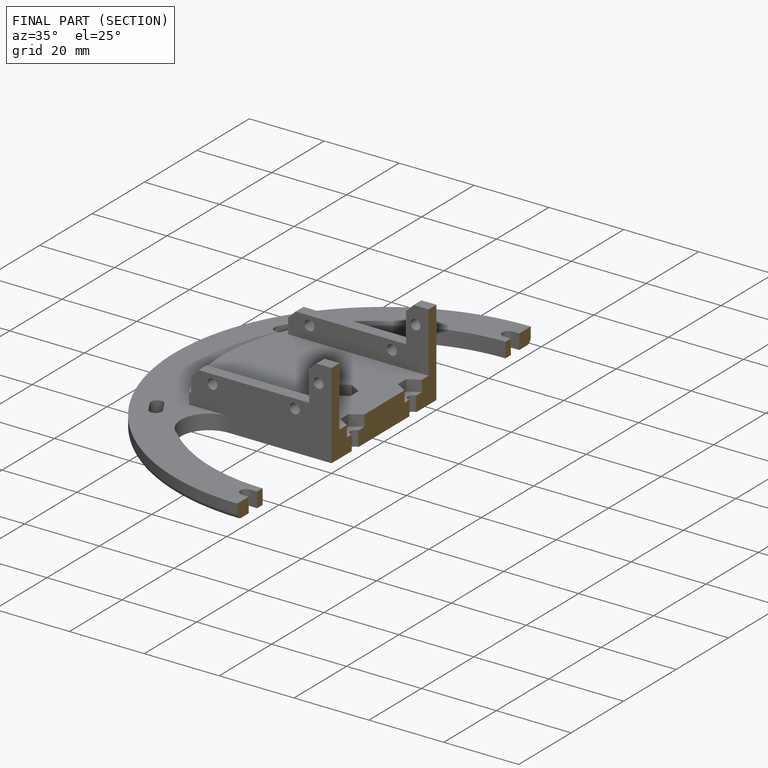
[diagram: finished part — half-section view (interior)]
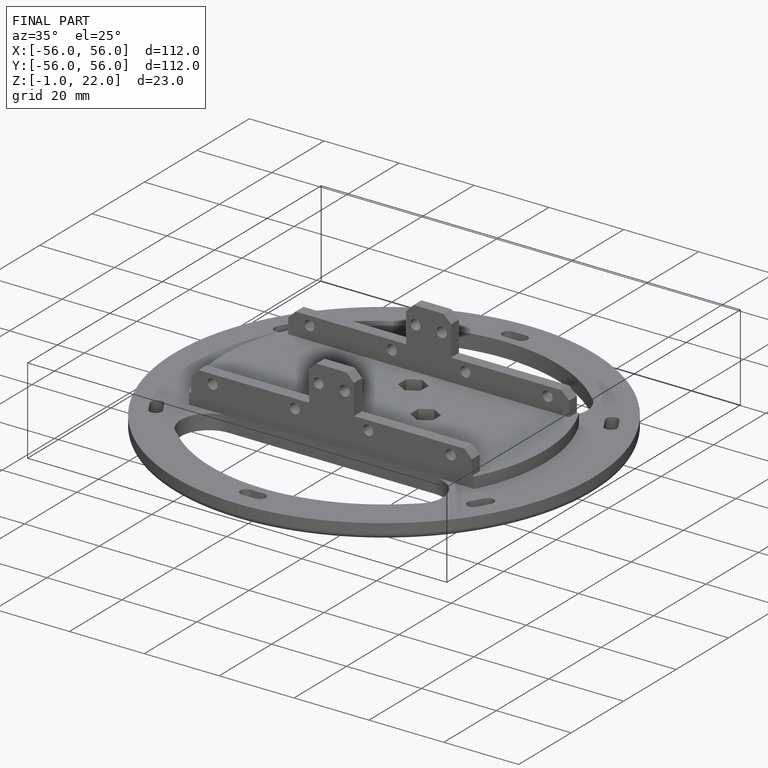
[diagram: finished part — iso view with bounding-box wireframe]
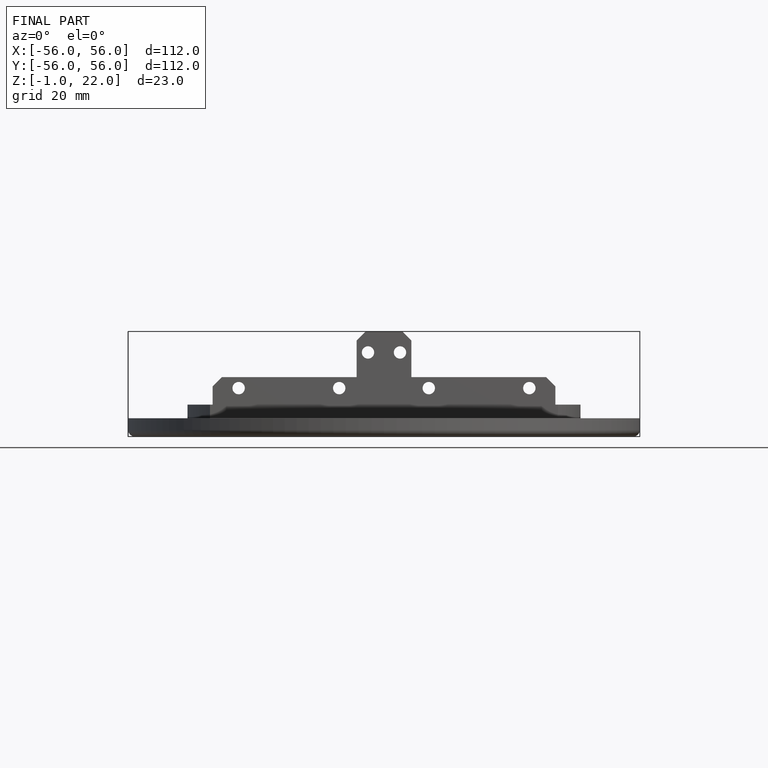
[diagram: finished part — front view with bounding-box wireframe]
